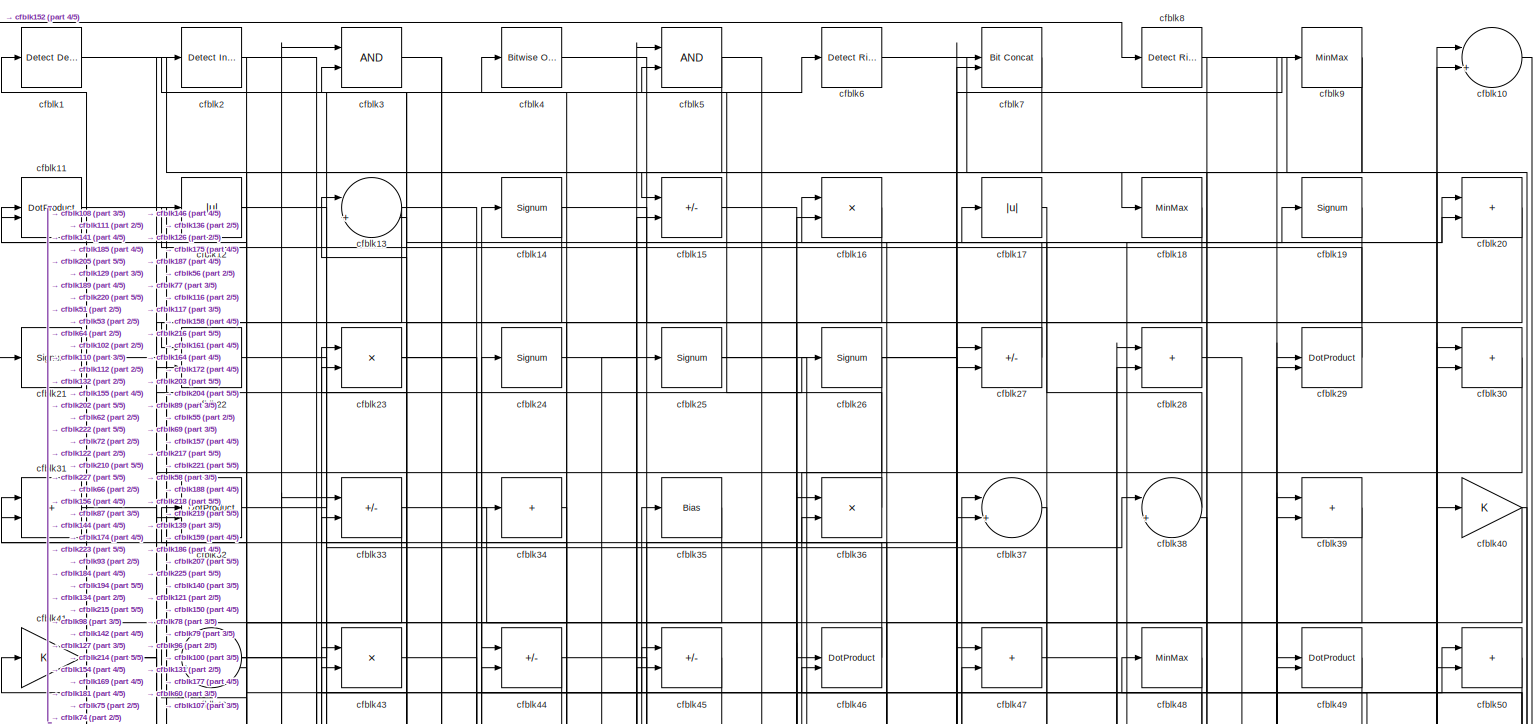
[diagram: root canvas - part 1/5, full width, top band]
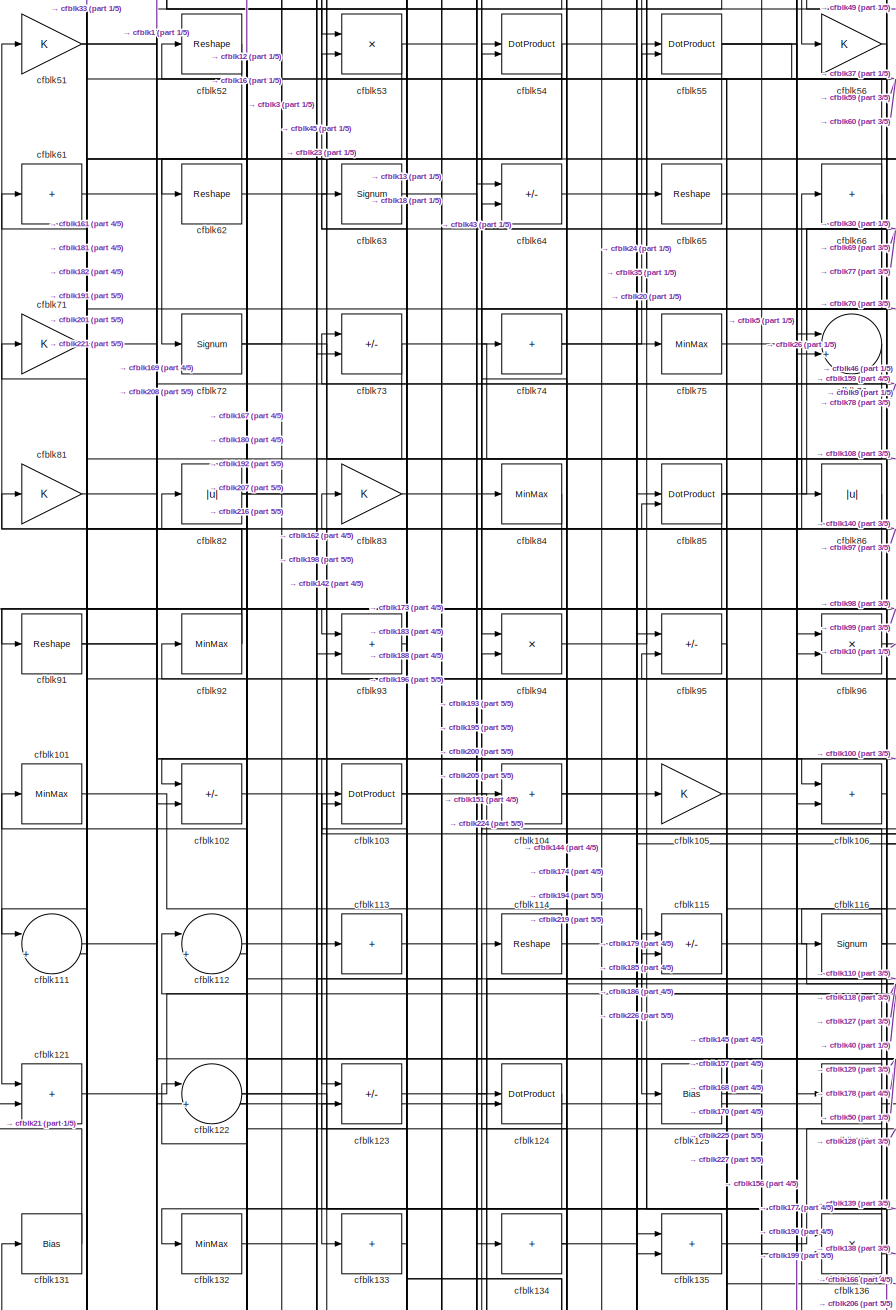
[diagram: root canvas - part 2/5, middle left region]
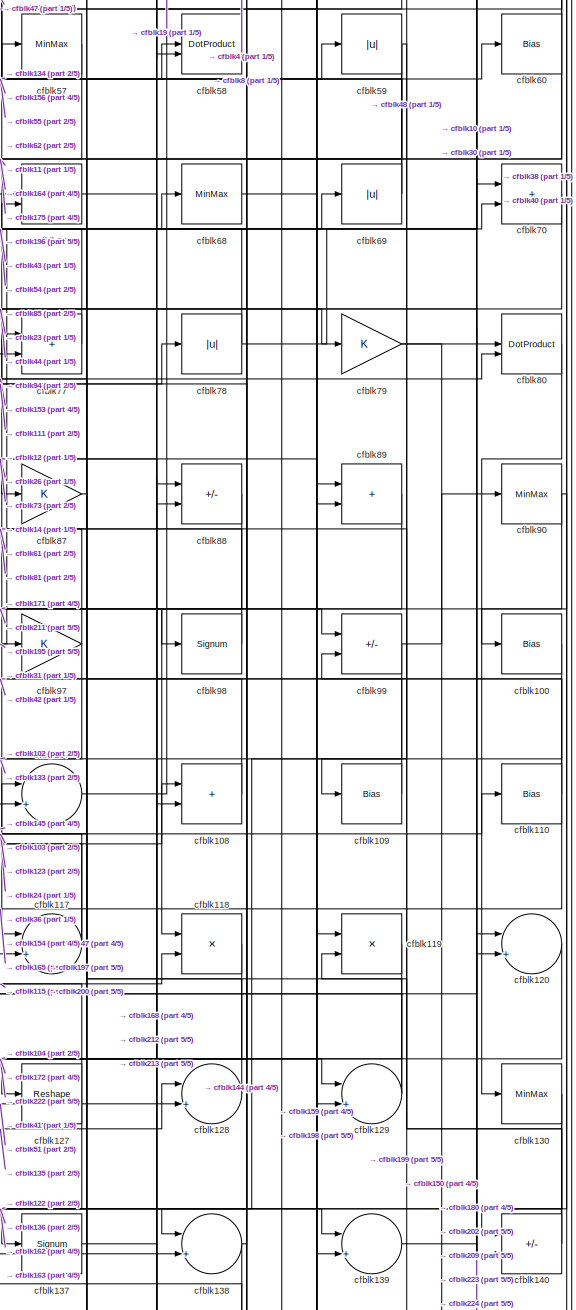
[diagram: root canvas - part 3/5, middle right region]
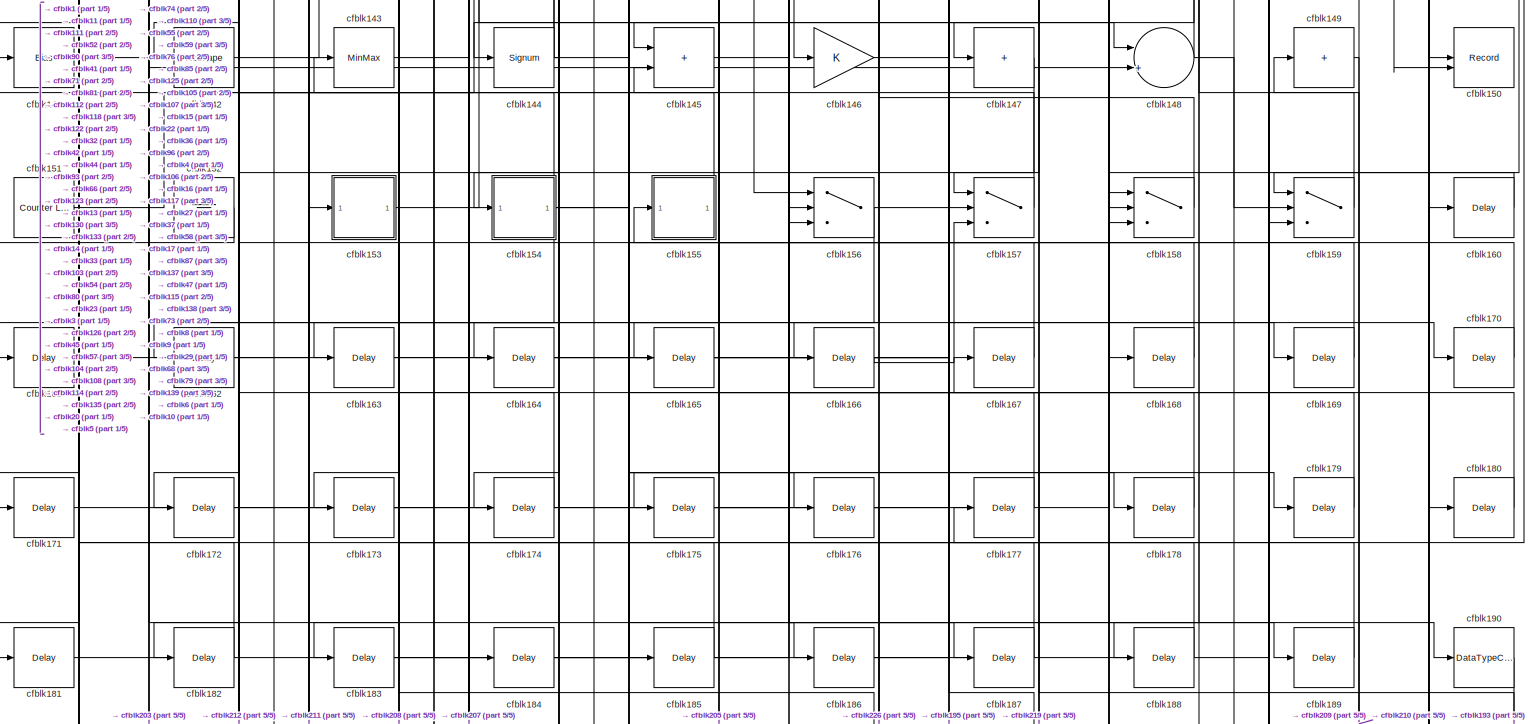
[diagram: root canvas - part 4/5, full width, bottom band]
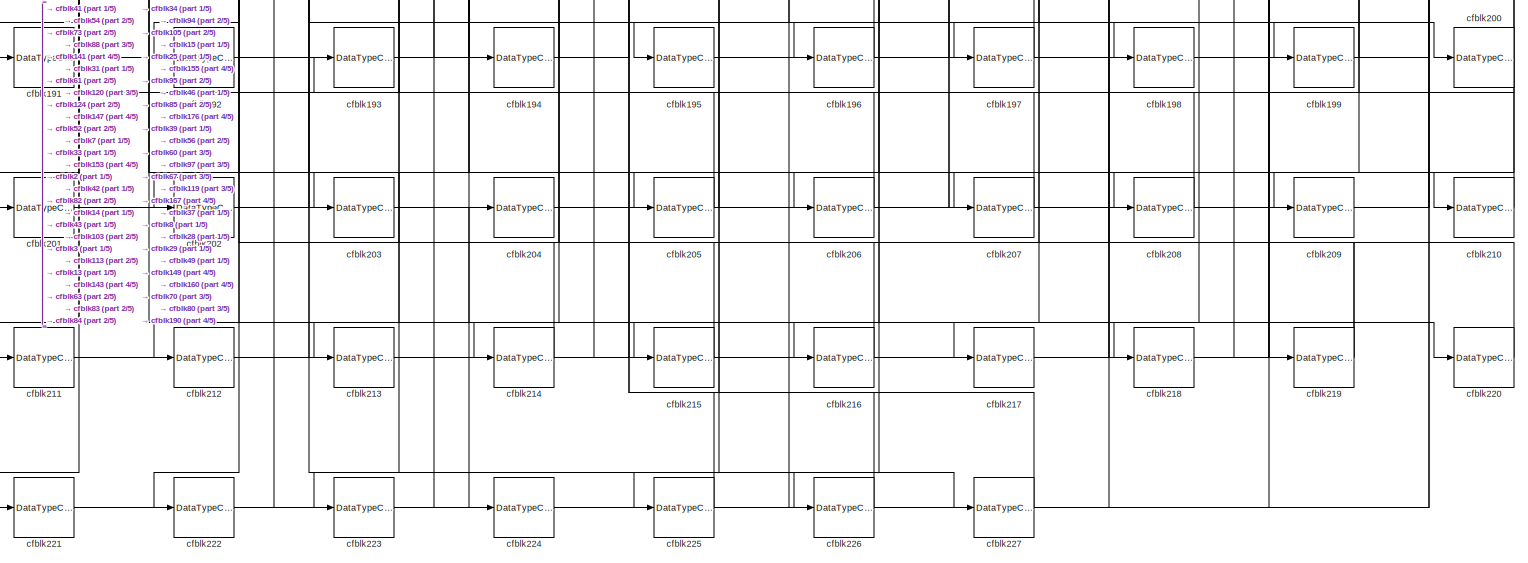
[diagram: root canvas - part 5/5, full width, bottom band]
MODEL slx_df833c5c7ba6
KIND model
CONFIG AbsTol = auto
CONFIG EnableMultiTasking = off
CONFIG FixedStep = auto
CONFIG MaxStep = auto
CONFIG MinStep = auto
CONFIG RelTol = 1e-3
CONFIG SampleTimeConstraint = Unconstrained
CONFIG SolverName = VariableStepAuto
CONFIG StartTime = 0.0
CONFIG StopTime = 10.0
BLOCK [Reference] cfblk1  REF=simulink/Logic and Bit
Operations/Detect
Decrease
  LibrarySourceBlock = hdlsllib/Logic and Bit\nOperations/Detect\nDecrease
  SourceBlock = simulink/Logic and Bit\nOperations/Detect\nDecrease
  SourceType = Detect Decrease
BLOCK [Sum] cfblk10
  Inputs = |++
BLOCK [Bias] cfblk100
  Bias = 0.0
  SaturateOnIntegerOverflow = off
BLOCK [MinMax] cfblk101
BLOCK [Sum] cfblk102
  IconShape = rectangular
  Inputs = +-
BLOCK [DotProduct] cfblk103
  OutDataTypeStr = Inherit: Inherit via internal rule
BLOCK [Sum] cfblk104
  IconShape = rectangular
  Inputs = +
BLOCK [Gain] cfblk105
BLOCK [Sum] cfblk106
  IconShape = rectangular
BLOCK [Sum] cfblk107
  Inputs = |++
BLOCK [Sum] cfblk108
  IconShape = rectangular
BLOCK [Bias] cfblk109
  Bias = 0.0
  SaturateOnIntegerOverflow = off
BLOCK [DotProduct] cfblk11
  OutDataTypeStr = Inherit: Inherit via internal rule
BLOCK [Bias] cfblk110
  Bias = 0.0
  SaturateOnIntegerOverflow = off
BLOCK [Sum] cfblk111
  Inputs = |++
BLOCK [Sum] cfblk112
  Inputs = |++
BLOCK [Sum] cfblk113
  IconShape = rectangular
  Inputs = +
BLOCK [Reshape] cfblk114
BLOCK [Sum] cfblk115
  IconShape = rectangular
  Inputs = +-
BLOCK [Signum] cfblk116
BLOCK [Sum] cfblk117
  Inputs = |++
BLOCK [Product] cfblk118
  Inputs = */
  RndMeth = Zero
  SaturateOnIntegerOverflow = on
BLOCK [Product] cfblk119
  Inputs = */
  RndMeth = Zero
  SaturateOnIntegerOverflow = on
BLOCK [Abs] cfblk12
  SaturateOnIntegerOverflow = off
BLOCK [Sum] cfblk120
  Inputs = |++
BLOCK [Sum] cfblk121
  IconShape = rectangular
BLOCK [Sum] cfblk122
  Inputs = |++
BLOCK [Sum] cfblk123
  IconShape = rectangular
  Inputs = +-
BLOCK [DotProduct] cfblk124
  OutDataTypeStr = Inherit: Inherit via internal rule
BLOCK [Bias] cfblk125
  Bias = 0.0
  SaturateOnIntegerOverflow = off
BLOCK [MinMax] cfblk126
BLOCK [Reshape] cfblk127
BLOCK [Sum] cfblk128
  Inputs = |++
BLOCK [Sum] cfblk129
  Inputs = |++
BLOCK [Sum] cfblk13
  Inputs = |++
BLOCK [MinMax] cfblk130
BLOCK [Bias] cfblk131
  Bias = 0.0
  SaturateOnIntegerOverflow = off
BLOCK [MinMax] cfblk132
BLOCK [Sum] cfblk133
  IconShape = rectangular
  Inputs = +
BLOCK [Sum] cfblk134
  IconShape = rectangular
  Inputs = +
BLOCK [Sum] cfblk135
  IconShape = rectangular
BLOCK [Product] cfblk136
  Inputs = */
  RndMeth = Zero
  SaturateOnIntegerOverflow = on
BLOCK [Signum] cfblk137
BLOCK [Sum] cfblk138
  Inputs = |++
BLOCK [Sum] cfblk139
  Inputs = |++
BLOCK [Signum] cfblk14
BLOCK [Sum] cfblk140
  IconShape = rectangular
  Inputs = +-
BLOCK [Bias] cfblk141
  Bias = 0.0
  SaturateOnIntegerOverflow = off
BLOCK [Reshape] cfblk142
BLOCK [MinMax] cfblk143
BLOCK [Signum] cfblk144
BLOCK [Sum] cfblk145
  IconShape = rectangular
BLOCK [Gain] cfblk146
BLOCK [Sum] cfblk147
  IconShape = rectangular
  Inputs = +
BLOCK [Sum] cfblk148
  Inputs = |++
BLOCK [Sum] cfblk149
  IconShape = rectangular
  Inputs = +
BLOCK [Sum] cfblk15
  IconShape = rectangular
  Inputs = +-
BLOCK [Record] cfblk150
  CompatibilityTag = XY
  FileSettingsInternal = {"entries":[{"content":{"excelSettings":{"content":{},"type":"Streamout.ExcelSettings"}},"type":"Streamout.FileSettingStorage","uuid":""}],"packageUris":["http:\/\/schema.mathworks.com\/mf0\/streamout_blocks\/R2020a"],"version":"1.0"}
  Layout = [1 1]
  SignalsInternal = {"entries":[{"content":{"signals":[{"content":{"blockPath":[],"dimensions":[1],"domain":"","lineColor":"#a2142f","plots":[1],"port":1,"signalID":5993,"signalName":"XY Graph:1"},"type":"RecordBlkView.Signal","uuid":""},{"content":{"blockPath":[],"dimensions":[1],"domain":"","lineColor":"#139fff","plots":[1],"port":2,"signalID":5996,"signalName":"XY Graph:2"},"type":"RecordBlkView.Signal","uuid":""}...<+146ch>
  VisualizationBindings = {"xyplotplugin":{"info":[{"series":[{"bindingParametersList":[{"parameter":"X-Axis","signalID":5993,"signalName":"XY Graph:1"},{"parameter":"Y-Axis","signalID":5996,"signalName":"XY Graph:2"}],"seriesID":10009}],"subplotID":1}]}}
  st = -1
BLOCK [Reference] cfblk151  REF=hdlsllib/Sources/Counter
Limited
  SourceBlock = hdlsllib/Sources/Counter\nLimited
  SourceType = Counter Limited
BLOCK [Ground] cfblk152
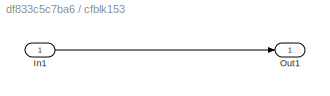
BLOCK [SubSystem] cfblk153
  LibrarySourceBlock = hdlsllib/Ports &\nSubsystems/Subsystem
BLOCK [Inport] cfblk153/In1
BLOCK [Outport] cfblk153/Out1
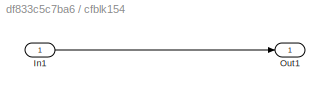
BLOCK [SubSystem] cfblk154
  LibrarySourceBlock = hdlsllib/Ports &\nSubsystems/Subsystem
BLOCK [Inport] cfblk154/In1
BLOCK [Outport] cfblk154/Out1
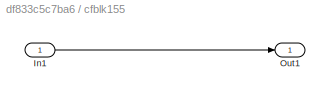
BLOCK [SubSystem] cfblk155
  LibrarySourceBlock = hdlsllib/Ports &\nSubsystems/Subsystem
BLOCK [Inport] cfblk155/In1
BLOCK [Outport] cfblk155/Out1
BLOCK [Switch] cfblk156
  InputSameDT = off
  SaturateOnIntegerOverflow = off
BLOCK [Switch] cfblk157
  InputSameDT = off
  SaturateOnIntegerOverflow = off
BLOCK [Switch] cfblk158
  InputSameDT = off
  SaturateOnIntegerOverflow = off
BLOCK [Switch] cfblk159
  InputSameDT = off
  SaturateOnIntegerOverflow = off
BLOCK [Product] cfblk16
  Inputs = */
  RndMeth = Zero
  SaturateOnIntegerOverflow = on
BLOCK [Delay] cfblk160
  InputPortMap = u0
  SampleTime = 1
BLOCK [Delay] cfblk161
  InputPortMap = u0
  SampleTime = 1
BLOCK [Delay] cfblk162
  InputPortMap = u0
  SampleTime = 1
BLOCK [Delay] cfblk163
  InputPortMap = u0
  SampleTime = 1
BLOCK [Delay] cfblk164
  InputPortMap = u0
  SampleTime = 1
BLOCK [Delay] cfblk165
  InputPortMap = u0
  SampleTime = 1
BLOCK [Delay] cfblk166
  InputPortMap = u0
  SampleTime = 1
BLOCK [Delay] cfblk167
  InputPortMap = u0
  SampleTime = 1
BLOCK [Delay] cfblk168
  InputPortMap = u0
  SampleTime = 1
BLOCK [Delay] cfblk169
  InputPortMap = u0
  SampleTime = 1
BLOCK [Abs] cfblk17
  SaturateOnIntegerOverflow = off
BLOCK [Delay] cfblk170
  InputPortMap = u0
  SampleTime = 1
BLOCK [Delay] cfblk171
  InputPortMap = u0
  SampleTime = 1
BLOCK [Delay] cfblk172
  InputPortMap = u0
  SampleTime = 1
BLOCK [Delay] cfblk173
  InputPortMap = u0
  SampleTime = 1
BLOCK [Delay] cfblk174
  InputPortMap = u0
  SampleTime = 1
BLOCK [Delay] cfblk175
  InputPortMap = u0
  SampleTime = 1
BLOCK [Delay] cfblk176
  InputPortMap = u0
  SampleTime = 1
BLOCK [Delay] cfblk177
  InputPortMap = u0
  SampleTime = 1
BLOCK [Delay] cfblk178
  InputPortMap = u0
  SampleTime = 1
BLOCK [Delay] cfblk179
  InputPortMap = u0
  SampleTime = 1
BLOCK [MinMax] cfblk18
BLOCK [Delay] cfblk180
  InputPortMap = u0
  SampleTime = 1
BLOCK [Delay] cfblk181
  InputPortMap = u0
  SampleTime = 1
BLOCK [Delay] cfblk182
  InputPortMap = u0
  SampleTime = 1
BLOCK [Delay] cfblk183
  InputPortMap = u0
  SampleTime = 1
BLOCK [Delay] cfblk184
  InputPortMap = u0
  SampleTime = 1
BLOCK [Delay] cfblk185
  InputPortMap = u0
  SampleTime = 1
BLOCK [Delay] cfblk186
  InputPortMap = u0
  SampleTime = 1
BLOCK [Delay] cfblk187
  InputPortMap = u0
  SampleTime = 1
BLOCK [Delay] cfblk188
  InputPortMap = u0
  SampleTime = 1
BLOCK [Delay] cfblk189
  InputPortMap = u0
  SampleTime = 1
BLOCK [Signum] cfblk19
BLOCK [DataTypeConversion] cfblk190
  OutDataTypeStr = uint8
  RndMeth = Floor
  SaturateOnIntegerOverflow = off
BLOCK [DataTypeConversion] cfblk191
  OutDataTypeStr = uint8
  RndMeth = Floor
  SaturateOnIntegerOverflow = off
BLOCK [DataTypeConversion] cfblk192
  OutDataTypeStr = uint8
  RndMeth = Floor
  SaturateOnIntegerOverflow = off
BLOCK [DataTypeConversion] cfblk193
  OutDataTypeStr = uint8
  RndMeth = Floor
  SaturateOnIntegerOverflow = off
BLOCK [DataTypeConversion] cfblk194
  OutDataTypeStr = uint8
  RndMeth = Floor
  SaturateOnIntegerOverflow = off
BLOCK [DataTypeConversion] cfblk195
  RndMeth = Floor
  SaturateOnIntegerOverflow = off
BLOCK [DataTypeConversion] cfblk196
  OutDataTypeStr = uint8
  RndMeth = Floor
  SaturateOnIntegerOverflow = off
BLOCK [DataTypeConversion] cfblk197
  OutDataTypeStr = uint8
  RndMeth = Floor
  SaturateOnIntegerOverflow = off
BLOCK [DataTypeConversion] cfblk198
  OutDataTypeStr = uint8
  RndMeth = Floor
  SaturateOnIntegerOverflow = off
BLOCK [DataTypeConversion] cfblk199
  OutDataTypeStr = uint8
  RndMeth = Floor
  SaturateOnIntegerOverflow = off
BLOCK [Reference] cfblk2  REF=simulink/Logic and Bit
Operations/Detect
Increase
  LibrarySourceBlock = hdlsllib/Logic and Bit\nOperations/Detect\nIncrease
  SourceBlock = simulink/Logic and Bit\nOperations/Detect\nIncrease
  SourceType = Detect Increase
BLOCK [Sum] cfblk20
  IconShape = rectangular
BLOCK [DataTypeConversion] cfblk200
  RndMeth = Floor
  SaturateOnIntegerOverflow = off
BLOCK [DataTypeConversion] cfblk201
  OutDataTypeStr = uint8
  RndMeth = Floor
  SaturateOnIntegerOverflow = off
BLOCK [DataTypeConversion] cfblk202
  OutDataTypeStr = uint8
  RndMeth = Floor
  SaturateOnIntegerOverflow = off
BLOCK [DataTypeConversion] cfblk203
  OutDataTypeStr = uint8
  RndMeth = Floor
  SaturateOnIntegerOverflow = off
BLOCK [DataTypeConversion] cfblk204
  OutDataTypeStr = uint8
  RndMeth = Floor
  SaturateOnIntegerOverflow = off
BLOCK [DataTypeConversion] cfblk205
  RndMeth = Floor
  SaturateOnIntegerOverflow = off
BLOCK [DataTypeConversion] cfblk206
  OutDataTypeStr = uint8
  RndMeth = Floor
  SaturateOnIntegerOverflow = off
BLOCK [DataTypeConversion] cfblk207
  RndMeth = Floor
  SaturateOnIntegerOverflow = off
BLOCK [DataTypeConversion] cfblk208
  OutDataTypeStr = uint8
  RndMeth = Floor
  SaturateOnIntegerOverflow = off
BLOCK [DataTypeConversion] cfblk209
  OutDataTypeStr = uint8
  RndMeth = Floor
  SaturateOnIntegerOverflow = off
BLOCK [Signum] cfblk21
BLOCK [DataTypeConversion] cfblk210
  OutDataTypeStr = uint8
  RndMeth = Floor
  SaturateOnIntegerOverflow = off
BLOCK [DataTypeConversion] cfblk211
  OutDataTypeStr = uint8
  RndMeth = Floor
  SaturateOnIntegerOverflow = off
BLOCK [DataTypeConversion] cfblk212
  OutDataTypeStr = uint8
  RndMeth = Floor
  SaturateOnIntegerOverflow = off
BLOCK [DataTypeConversion] cfblk213
  OutDataTypeStr = uint8
  RndMeth = Floor
  SaturateOnIntegerOverflow = off
BLOCK [DataTypeConversion] cfblk214
  RndMeth = Floor
  SaturateOnIntegerOverflow = off
BLOCK [DataTypeConversion] cfblk215
  OutDataTypeStr = uint8
  RndMeth = Floor
  SaturateOnIntegerOverflow = off
BLOCK [DataTypeConversion] cfblk216
  RndMeth = Floor
  SaturateOnIntegerOverflow = off
BLOCK [DataTypeConversion] cfblk217
  OutDataTypeStr = uint8
  RndMeth = Floor
  SaturateOnIntegerOverflow = off
BLOCK [DataTypeConversion] cfblk218
  OutDataTypeStr = uint8
  RndMeth = Floor
  SaturateOnIntegerOverflow = off
BLOCK [DataTypeConversion] cfblk219
  RndMeth = Floor
  SaturateOnIntegerOverflow = off
BLOCK [Product] cfblk22
  Inputs = */
  RndMeth = Zero
  SaturateOnIntegerOverflow = on
BLOCK [DataTypeConversion] cfblk220
  OutDataTypeStr = uint8
  RndMeth = Floor
  SaturateOnIntegerOverflow = off
BLOCK [DataTypeConversion] cfblk221
  OutDataTypeStr = uint8
  RndMeth = Floor
  SaturateOnIntegerOverflow = off
BLOCK [DataTypeConversion] cfblk222
  RndMeth = Floor
  SaturateOnIntegerOverflow = off
BLOCK [DataTypeConversion] cfblk223
  OutDataTypeStr = uint8
  RndMeth = Floor
  SaturateOnIntegerOverflow = off
BLOCK [DataTypeConversion] cfblk224
  OutDataTypeStr = uint8
  RndMeth = Floor
  SaturateOnIntegerOverflow = off
BLOCK [DataTypeConversion] cfblk225
  RndMeth = Floor
  SaturateOnIntegerOverflow = off
BLOCK [DataTypeConversion] cfblk226
  OutDataTypeStr = uint8
  RndMeth = Floor
  SaturateOnIntegerOverflow = off
BLOCK [DataTypeConversion] cfblk227
  OutDataTypeStr = uint8
  RndMeth = Floor
  SaturateOnIntegerOverflow = off
BLOCK [Product] cfblk23
  Inputs = */
  RndMeth = Zero
  SaturateOnIntegerOverflow = on
BLOCK [Signum] cfblk24
BLOCK [Signum] cfblk25
BLOCK [Signum] cfblk26
BLOCK [Sum] cfblk27
  IconShape = rectangular
  Inputs = +-
BLOCK [Sum] cfblk28
  IconShape = rectangular
BLOCK [DotProduct] cfblk29
  OutDataTypeStr = Inherit: Inherit via internal rule
BLOCK [Logic] cfblk3
  AllPortsSameDT = off
  OutDataTypeStr = boolean
BLOCK [Sum] cfblk30
  IconShape = rectangular
BLOCK [Sum] cfblk31
  IconShape = rectangular
BLOCK [DotProduct] cfblk32
  OutDataTypeStr = Inherit: Inherit via internal rule
BLOCK [Sum] cfblk33
  IconShape = rectangular
  Inputs = +-
BLOCK [Sum] cfblk34
  IconShape = rectangular
  Inputs = +
BLOCK [Bias] cfblk35
  Bias = 0.0
  SaturateOnIntegerOverflow = off
BLOCK [Product] cfblk36
  Inputs = */
  RndMeth = Zero
  SaturateOnIntegerOverflow = on
BLOCK [Sum] cfblk37
  Inputs = |++
BLOCK [Sum] cfblk38
  Inputs = |++
BLOCK [Sum] cfblk39
  IconShape = rectangular
BLOCK [Reference] cfblk4  REF=simulink/Logic and Bit
Operations/Bitwise
Operator
  LibrarySourceBlock = hdlsllib/Logic and Bit\nOperations/Bitwise\nOperator
  SourceBlock = simulink/Logic and Bit\nOperations/Bitwise\nOperator
  SourceType = Bitwise Operator
BLOCK [Gain] cfblk40
BLOCK [Gain] cfblk41
BLOCK [Sum] cfblk42
  Inputs = |++
BLOCK [Product] cfblk43
  Inputs = */
  RndMeth = Zero
  SaturateOnIntegerOverflow = on
BLOCK [Sum] cfblk44
  IconShape = rectangular
  Inputs = +-
BLOCK [Sum] cfblk45
  IconShape = rectangular
  Inputs = +-
BLOCK [DotProduct] cfblk46
  OutDataTypeStr = Inherit: Inherit via internal rule
BLOCK [Sum] cfblk47
  IconShape = rectangular
BLOCK [MinMax] cfblk48
BLOCK [DotProduct] cfblk49
  OutDataTypeStr = Inherit: Inherit via internal rule
BLOCK [Logic] cfblk5
  AllPortsSameDT = off
  OutDataTypeStr = boolean
BLOCK [Sum] cfblk50
  IconShape = rectangular
BLOCK [Gain] cfblk51
BLOCK [Reshape] cfblk52
BLOCK [Product] cfblk53
  Inputs = */
  RndMeth = Zero
  SaturateOnIntegerOverflow = on
BLOCK [DotProduct] cfblk54
  OutDataTypeStr = Inherit: Inherit via internal rule
BLOCK [DotProduct] cfblk55
  OutDataTypeStr = Inherit: Inherit via internal rule
BLOCK [Gain] cfblk56
BLOCK [MinMax] cfblk57
BLOCK [DotProduct] cfblk58
  OutDataTypeStr = Inherit: Inherit via internal rule
BLOCK [Abs] cfblk59
  SaturateOnIntegerOverflow = off
BLOCK [Reference] cfblk6  REF=hdlsllib/Logic and Bit
Operations/Detect Rise
Nonnegative
  SourceBlock = hdlsllib/Logic and Bit\nOperations/Detect Rise\nNonnegative
  SourceType = Detect Rise Nonnegative
BLOCK [Bias] cfblk60
  Bias = 0.0
  SaturateOnIntegerOverflow = off
BLOCK [Sum] cfblk61
  IconShape = rectangular
  Inputs = +
BLOCK [Reshape] cfblk62
BLOCK [Signum] cfblk63
BLOCK [Sum] cfblk64
  IconShape = rectangular
  Inputs = +-
BLOCK [Reshape] cfblk65
BLOCK [Sum] cfblk66
  IconShape = rectangular
  Inputs = +
BLOCK [DotProduct] cfblk67
  OutDataTypeStr = Inherit: Inherit via internal rule
BLOCK [MinMax] cfblk68
BLOCK [Abs] cfblk69
  SaturateOnIntegerOverflow = off
BLOCK [Reference] cfblk7  REF=hdlsllib/Logic and Bit
Operations/Bit Concat
  SourceBlock = hdlsllib/Logic and Bit\nOperations/Bit Concat
  SourceType = Bit Concat
BLOCK [Sum] cfblk70
  IconShape = rectangular
BLOCK [Gain] cfblk71
BLOCK [Signum] cfblk72
BLOCK [Sum] cfblk73
  IconShape = rectangular
  Inputs = +-
BLOCK [Sum] cfblk74
  IconShape = rectangular
  Inputs = +
BLOCK [MinMax] cfblk75
BLOCK [Sum] cfblk76
  Inputs = |++
BLOCK [Sum] cfblk77
  IconShape = rectangular
BLOCK [Abs] cfblk78
  SaturateOnIntegerOverflow = off
BLOCK [Gain] cfblk79
BLOCK [Reference] cfblk8  REF=hdlsllib/Logic and Bit
Operations/Detect Rise
Positive
  SourceBlock = hdlsllib/Logic and Bit\nOperations/Detect Rise\nPositive
  SourceType = Detect Rise Positive
BLOCK [DotProduct] cfblk80
  OutDataTypeStr = Inherit: Inherit via internal rule
BLOCK [Gain] cfblk81
BLOCK [Abs] cfblk82
  SaturateOnIntegerOverflow = off
BLOCK [Gain] cfblk83
BLOCK [MinMax] cfblk84
BLOCK [DotProduct] cfblk85
  OutDataTypeStr = Inherit: Inherit via internal rule
BLOCK [Abs] cfblk86
  SaturateOnIntegerOverflow = off
BLOCK [Gain] cfblk87
BLOCK [Sum] cfblk88
  IconShape = rectangular
  Inputs = +-
BLOCK [Sum] cfblk89
  IconShape = rectangular
BLOCK [MinMax] cfblk9
BLOCK [MinMax] cfblk90
BLOCK [Reshape] cfblk91
BLOCK [MinMax] cfblk92
BLOCK [Sum] cfblk93
  IconShape = rectangular
BLOCK [Product] cfblk94
  Inputs = */
  RndMeth = Zero
  SaturateOnIntegerOverflow = on
BLOCK [Sum] cfblk95
  IconShape = rectangular
  Inputs = +-
BLOCK [Product] cfblk96
  Inputs = */
  RndMeth = Zero
  SaturateOnIntegerOverflow = on
BLOCK [Gain] cfblk97
BLOCK [Signum] cfblk98
BLOCK [Sum] cfblk99
  IconShape = rectangular
  Inputs = +-
LINE cfblk100:1 -> cfblk133:1
LINE cfblk101:1 -> cfblk125:1
LINE cfblk102:1 -> cfblk123:1
NET cfblk103:1 -> cfblk148:1, cfblk224:1
NET cfblk104:1 -> cfblk129:2, cfblk178:1
LINE cfblk105:1 -> cfblk190:1
LINE cfblk106:1 -> cfblk166:1
LINE cfblk107:1 -> cfblk19:1
LINE cfblk108:1 -> cfblk31:2
LINE cfblk109:1 -> cfblk99:2
LINE cfblk10:1 -> cfblk177:1
NET cfblk110:1 -> cfblk165:1, cfblk42:2, cfblk57:1
LINE cfblk111:1 -> cfblk78:1
LINE cfblk112:1 -> cfblk65:1
LINE cfblk113:1 -> cfblk200:1
LINE cfblk114:1 -> cfblk185:1
LINE cfblk115:1 -> cfblk118:2
NET cfblk116:1 -> cfblk46:2, cfblk64:2, cfblk9:1
NET cfblk117:1 -> cfblk24:1, cfblk36:2
LINE cfblk118:1 -> cfblk172:1
LINE cfblk119:1 -> cfblk197:1
NET cfblk11:1 -> cfblk141:1, cfblk89:1
LINE cfblk120:1 -> cfblk222:1
LINE cfblk121:1 -> cfblk40:1
NET cfblk122:1 -> cfblk139:1, cfblk45:1
LINE cfblk123:1 -> cfblk110:1
LINE cfblk124:1 -> cfblk192:1
LINE cfblk125:1 -> cfblk156:1
NET cfblk126:1 -> cfblk101:1, cfblk174:1
NET cfblk127:1 -> cfblk136:1, cfblk44:2
LINE cfblk128:1 -> cfblk103:1
NET cfblk129:1 -> cfblk115:1, cfblk77:1
NET cfblk12:1 -> cfblk102:1, cfblk87:1
NET cfblk130:1 -> cfblk162:1, cfblk163:1
LINE cfblk131:1 -> cfblk21:1
LINE cfblk132:1 -> cfblk114:1
LINE cfblk133:1 -> cfblk183:1
NET cfblk134:1 -> cfblk59:1, cfblk74:1
LINE cfblk135:1 -> cfblk128:1
LINE cfblk136:1 -> cfblk92:1
LINE cfblk137:1 -> cfblk168:1
NET cfblk138:1 -> cfblk144:1, cfblk68:1
LINE cfblk139:1 -> cfblk180:1
NET cfblk13:1 -> cfblk215:1, cfblk22:2
NET cfblk140:1 -> cfblk48:1, cfblk81:1
LINE cfblk141:1 -> cfblk203:1
LINE cfblk142:1 -> cfblk66:1
LINE cfblk143:1 -> cfblk207:1
NET cfblk144:1 -> cfblk104:1, cfblk176:1, cfblk23:2, cfblk3:2
LINE cfblk145:1 -> cfblk107:1
LINE cfblk146:1 -> cfblk170:1
LINE cfblk147:1 -> cfblk212:1
NET cfblk148:1 -> cfblk115:2, cfblk159:2
LINE cfblk149:1 -> cfblk209:1
NET cfblk14:1 -> cfblk156:3, cfblk223:1
LINE cfblk151:1 -> cfblk54:1
LINE cfblk152:1 -> cfblk8:1
LINE cfblk153/In1:1 -> cfblk153/Out1:1
LINE cfblk153:1 -> cfblk80:2
LINE cfblk154/In1:1 -> cfblk154/Out1:1
NET cfblk154:1 -> cfblk108:1, cfblk182:1, cfblk20:2, cfblk32:1
LINE cfblk155/In1:1 -> cfblk155/Out1:1
LINE cfblk155:1 -> cfblk42:1
NET cfblk156:1 -> cfblk173:1, cfblk58:1
LINE cfblk157:1 -> cfblk55:1
LINE cfblk158:1 -> cfblk16:1
LINE cfblk159:1 -> cfblk73:1
LINE cfblk15:1 -> cfblk187:1
LINE cfblk160:1 -> cfblk158:2
LINE cfblk161:1 -> cfblk47:1
LINE cfblk162:1 -> cfblk93:2
LINE cfblk163:1 -> cfblk117:2
LINE cfblk164:1 -> cfblk27:1
LINE cfblk165:1 -> cfblk107:2
LINE cfblk166:1 -> cfblk157:3
LINE cfblk167:1 -> cfblk112:1
LINE cfblk168:1 -> cfblk85:2
LINE cfblk169:1 -> cfblk5:1
LINE cfblk16:1 -> cfblk62:1
LINE cfblk170:1 -> cfblk55:2
LINE cfblk171:1 -> cfblk158:3
LINE cfblk172:1 -> cfblk37:2
LINE cfblk173:1 -> cfblk103:2
LINE cfblk174:1 -> cfblk33:2
LINE cfblk175:1 -> cfblk16:2
LINE cfblk176:1 -> cfblk226:1
LINE cfblk177:1 -> cfblk96:1
LINE cfblk178:1 -> cfblk135:1
LINE cfblk179:1 -> cfblk145:2
LINE cfblk17:1 -> cfblk157:1
LINE cfblk180:1 -> cfblk122:1
LINE cfblk181:1 -> cfblk45:2
LINE cfblk182:1 -> cfblk111:2
LINE cfblk183:1 -> cfblk76:2
LINE cfblk184:1 -> cfblk157:2
LINE cfblk185:1 -> cfblk1:1
LINE cfblk186:1 -> cfblk29:2
LINE cfblk187:1 -> cfblk13:1
LINE cfblk188:1 -> cfblk123:2
LINE cfblk189:1 -> cfblk36:1
LINE cfblk18:1 -> cfblk93:1
LINE cfblk190:1 -> cfblk193:1
LINE cfblk191:1 -> cfblk105:1
LINE cfblk192:1 -> cfblk84:1
LINE cfblk193:1 -> cfblk124:1
LINE cfblk194:1 -> cfblk124:2
NET cfblk195:1 -> cfblk160:1, cfblk97:1
LINE cfblk196:1 -> cfblk83:1
LINE cfblk197:1 -> cfblk67:1
LINE cfblk198:1 -> cfblk119:1
LINE cfblk199:1 -> cfblk119:2
LINE cfblk19:1 -> cfblk27:2
NET cfblk1:1 -> cfblk18:1, cfblk53:1
NET cfblk200:1 -> cfblk213:1, cfblk67:2
LINE cfblk201:1 -> cfblk113:1
LINE cfblk202:1 -> cfblk70:1
LINE cfblk203:1 -> cfblk7:1
LINE cfblk204:1 -> cfblk7:2
NET cfblk205:1 -> cfblk155:1, cfblk41:1
LINE cfblk206:1 -> cfblk63:1
NET cfblk207:1 -> cfblk29:1, cfblk52:1
LINE cfblk208:1 -> cfblk143:1
LINE cfblk209:1 -> cfblk80:1
LINE cfblk20:1 -> cfblk44:1
LINE cfblk210:1 -> cfblk149:1
LINE cfblk211:1 -> cfblk153:1
LINE cfblk212:1 -> cfblk88:1
LINE cfblk213:1 -> cfblk88:2
NET cfblk214:1 -> cfblk15:2, cfblk25:1, cfblk43:2
LINE cfblk215:1 -> cfblk34:1
NET cfblk216:1 -> cfblk49:2, cfblk82:1
LINE cfblk217:1 -> cfblk39:1
LINE cfblk218:1 -> cfblk39:2
NET cfblk219:1 -> cfblk167:1, cfblk94:2
LINE cfblk21:1 -> cfblk64:1
LINE cfblk220:1 -> cfblk28:1
LINE cfblk221:1 -> cfblk28:2
NET cfblk222:1 -> cfblk204:1, cfblk33:1, cfblk46:1
LINE cfblk223:1 -> cfblk120:1
LINE cfblk224:1 -> cfblk120:2
NET cfblk225:1 -> cfblk49:1, cfblk85:1
LINE cfblk226:1 -> cfblk95:1
LINE cfblk227:1 -> cfblk95:2
LINE cfblk22:1 -> cfblk156:2
NET cfblk23:1 -> cfblk79:1, cfblk96:2
LINE cfblk24:1 -> cfblk75:1
NET cfblk25:1 -> cfblk117:1, cfblk77:2
NET cfblk26:1 -> cfblk50:2, cfblk56:1, cfblk89:2
LINE cfblk27:1 -> cfblk2:1
LINE cfblk28:1 -> cfblk219:1
LINE cfblk29:1 -> cfblk12:1
NET cfblk2:1 -> cfblk227:1, cfblk22:1
LINE cfblk30:1 -> cfblk32:2
LINE cfblk31:1 -> cfblk220:1
LINE cfblk32:1 -> cfblk6:1
NET cfblk33:1 -> cfblk111:1, cfblk126:1
LINE cfblk34:1 -> cfblk214:1
LINE cfblk35:1 -> cfblk132:1
LINE cfblk36:1 -> cfblk5:2
LINE cfblk37:1 -> cfblk217:1
LINE cfblk38:1 -> cfblk17:1
LINE cfblk39:1 -> cfblk216:1
NET cfblk3:1 -> cfblk184:1, cfblk194:1
NET cfblk40:1 -> cfblk100:1, cfblk122:2
NET cfblk41:1 -> cfblk129:1, cfblk189:1
NET cfblk42:1 -> cfblk210:1, cfblk38:1
LINE cfblk43:1 -> cfblk134:1
NET cfblk44:1 -> cfblk140:2, cfblk142:1
LINE cfblk45:1 -> cfblk154:1
LINE cfblk46:1 -> cfblk31:1
LINE cfblk47:1 -> cfblk158:1
LINE cfblk48:1 -> cfblk58:2
LINE cfblk49:1 -> cfblk116:1
LINE cfblk4:1 -> cfblk146:1
LINE cfblk50:1 -> cfblk131:1
NET cfblk51:1 -> cfblk128:2, cfblk26:1
LINE cfblk52:1 -> cfblk161:1
NET cfblk53:1 -> cfblk50:1, cfblk72:1
NET cfblk54:1 -> cfblk179:1, cfblk191:1, cfblk201:1
NET cfblk55:1 -> cfblk138:2, cfblk37:1, cfblk73:2, cfblk98:1
LINE cfblk56:1 -> cfblk206:1
LINE cfblk57:1 -> cfblk164:1
LINE cfblk58:1 -> cfblk4:1
NET cfblk59:1 -> cfblk109:1, cfblk138:1, cfblk175:1
NET cfblk5:1 -> cfblk112:2, cfblk136:2
NET cfblk60:1 -> cfblk11:1, cfblk127:1, cfblk196:1, cfblk38:2
LINE cfblk61:1 -> cfblk208:1
LINE cfblk62:1 -> cfblk60:1
LINE cfblk63:1 -> cfblk205:1
LINE cfblk64:1 -> cfblk20:1
LINE cfblk65:1 -> cfblk76:1
NET cfblk66:1 -> cfblk106:2, cfblk181:1, cfblk23:1
LINE cfblk67:1 -> cfblk70:2
LINE cfblk68:1 -> cfblk159:3
NET cfblk69:1 -> cfblk11:2, cfblk47:2
LINE cfblk6:1 -> cfblk150:1
LINE cfblk70:1 -> cfblk94:1
LINE cfblk71:1 -> cfblk148:2
NET cfblk72:1 -> cfblk135:2, cfblk3:1
NET cfblk73:1 -> cfblk108:2, cfblk221:1
NET cfblk74:1 -> cfblk186:1, cfblk35:1
LINE cfblk75:1 -> cfblk30:1
LINE cfblk76:1 -> cfblk145:1
LINE cfblk77:1 -> cfblk54:2
NET cfblk78:1 -> cfblk30:2, cfblk43:1
NET cfblk79:1 -> cfblk10:2, cfblk150:2
LINE cfblk7:1 -> cfblk202:1
LINE cfblk80:1 -> cfblk130:1
LINE cfblk81:1 -> cfblk169:1
NET cfblk82:1 -> cfblk198:1, cfblk86:1
LINE cfblk83:1 -> cfblk195:1
LINE cfblk84:1 -> cfblk121:1
NET cfblk85:1 -> cfblk121:2, cfblk199:1, cfblk69:1
LINE cfblk86:1 -> cfblk91:1
LINE cfblk87:1 -> cfblk147:1
LINE cfblk88:1 -> cfblk211:1
LINE cfblk89:1 -> cfblk118:1
NET cfblk8:1 -> cfblk139:2, cfblk159:1, cfblk218:1
NET cfblk90:1 -> cfblk140:1, cfblk171:1
NET cfblk91:1 -> cfblk106:1, cfblk53:2
NET cfblk92:1 -> cfblk51:1, cfblk71:1
LINE cfblk93:1 -> cfblk13:2
LINE cfblk94:1 -> cfblk99:1
LINE cfblk95:1 -> cfblk225:1
LINE cfblk96:1 -> cfblk10:1
NET cfblk97:1 -> cfblk102:2, cfblk61:1
LINE cfblk98:1 -> cfblk14:1
NET cfblk99:1 -> cfblk137:1, cfblk90:1
NET cfblk9:1 -> cfblk15:1, cfblk188:1
note: NET lines group one-source signal fan-out (src -> all destinations, sorted); 1:1 wires keep LINE
